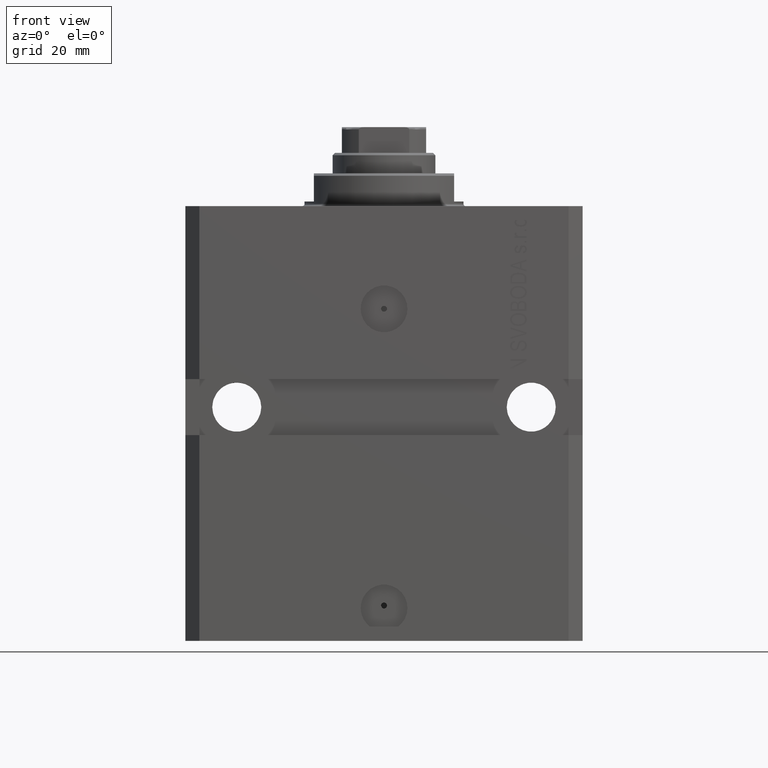
[diagram: clean part render]
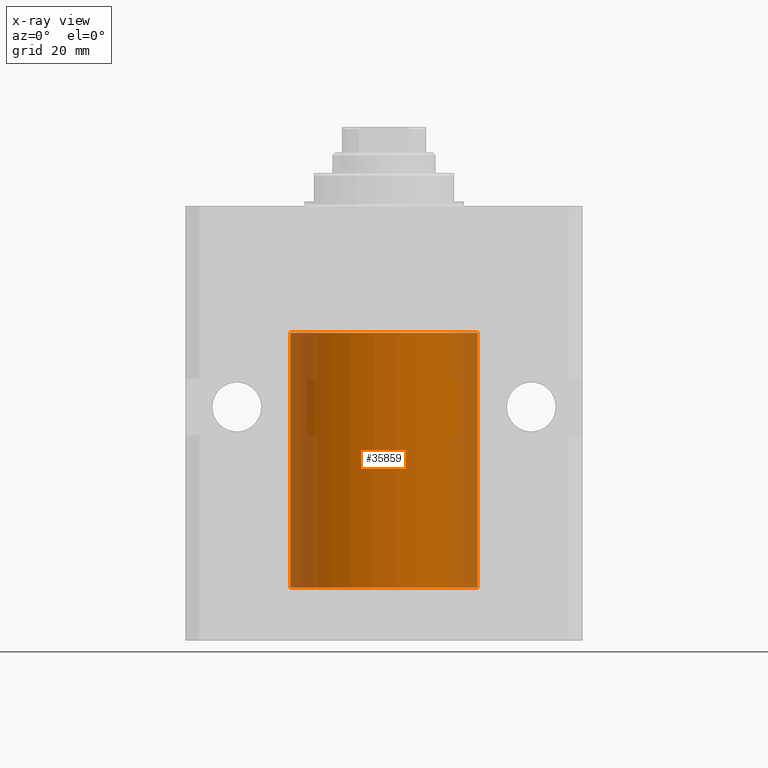
[diagram: x-ray — body ghosted, one internal face saturated and labeled with its STEP entity id]
A machine part, front view, then the same camera in x-ray: the body is ghosted and one INTERNAL B-rep face — a face not visible from any outside direction — is saturated and labeled: STEP entity #35859.
In plain terms, the highlighted cylindrical surface (partial cylindrical patch) has radius 20 mm, axis along (0, 0, 1).
Its self-contained STEP definition (entity closure, byte-faithful):
#135 = EDGE_CURVE ( 'NONE', #24305, #828, #24564, .T. ) ;
#230 = ORIENTED_EDGE ( 'NONE', *, *, #8364, .F. ) ;
#236 = DIRECTION ( 'NONE',  ( 1.000000000000000000, 0.000000000000000000, 0.000000000000000000 ) ) ;
#828 = VERTEX_POINT ( 'NONE', #15972 ) ;
#1352 = CARTESIAN_POINT ( 'NONE',  ( 19.99023198964933812, -0.6250000000000827116, -79.00000000000000000 ) ) ;
#1637 = VERTEX_POINT ( 'NONE', #27080 ) ;
#4079 = CYLINDRICAL_SURFACE ( 'NONE', #16557, 20.00000000000000000 ) ;
#5069 = CARTESIAN_POINT ( 'NONE',  ( -20.00000000000000000, 2.449293598294706513E-15, -27.10000000000000142 ) ) ;
#5662 = CARTESIAN_POINT ( 'NONE',  ( 20.00000000000000000, -4.058908006348821872E-15, -79.62500000000000000 ) ) ;
#6631 = LINE ( 'NONE', #43461, #28544 ) ;
#6952 = DIRECTION ( 'NONE',  ( 0.000000000000000000, 0.000000000000000000, 1.000000000000000000 ) ) ;
#7397 = B_SPLINE_CURVE_WITH_KNOTS ( 'NONE', 3,
 ( #26038, #36882, #18802, #26513, #41672, #7953 ),
 .UNSPECIFIED., .F., .F.,
 ( 4, 2, 4 ),
 ( 0.001954154509844075859, 0.002442840306376440652, 0.002931526102908805446 ),
 .UNSPECIFIED. ) ;
#7953 = CARTESIAN_POINT ( 'NONE',  ( 19.99023198964933812, -0.6250000000000827116, -79.00000000000000000 ) ) ;
#8364 = EDGE_CURVE ( 'NONE', #40301, #828, #6631, .T. ) ;
#8719 = DIRECTION ( 'NONE',  ( -0.000000000000000000, -0.000000000000000000, 1.000000000000000000 ) ) ;
#9108 = VERTEX_POINT ( 'NONE', #33675 ) ;
#10846 = CARTESIAN_POINT ( 'NONE',  ( 19.99023198964933812, -0.6250000000000827116, -79.00000000000000000 ) ) ;
#11799 = FACE_OUTER_BOUND ( 'NONE', #13258, .T. ) ;
#12275 = CARTESIAN_POINT ( 'NONE',  ( 0.000000000000000000, 0.000000000000000000, -81.60000000000000853 ) ) ;
#12760 = DIRECTION ( 'NONE',  ( 1.000000000000000000, 0.000000000000000000, 0.000000000000000000 ) ) ;
#13258 = EDGE_LOOP ( 'NONE', ( #42180, #25064, #16062, #230, #43840, #18615, #18397 ) ) ;
#14463 = EDGE_CURVE ( 'NONE', #30518, #1637, #31613, .T. ) ;
#14938 = DIRECTION ( 'NONE',  ( -0.000000000000000000, -0.000000000000000000, 1.000000000000000000 ) ) ;
#15135 = CARTESIAN_POINT ( 'NONE',  ( 0.000000000000000000, 0.000000000000000000, -27.10000000000000142 ) ) ;
#15972 = CARTESIAN_POINT ( 'NONE',  ( 20.00000000000000000, 0.000000000000000000, -27.10000000000000142 ) ) ;
#16062 = ORIENTED_EDGE ( 'NONE', *, *, #135, .T. ) ;
#16557 = AXIS2_PLACEMENT_3D ( 'NONE', #29405, #14938, #236 ) ;
#16764 = CARTESIAN_POINT ( 'NONE',  ( 20.00000000000000000, 0.000000000000000000, -81.60000000000000853 ) ) ;
#16852 = DIRECTION ( 'NONE',  ( 0.000000000000000000, 0.000000000000000000, 1.000000000000000000 ) ) ;
#18397 = ORIENTED_EDGE ( 'NONE', *, *, #14463, .F. ) ;
#18615 = ORIENTED_EDGE ( 'NONE', *, *, #44817, .T. ) ;
#18802 = CARTESIAN_POINT ( 'NONE',  ( 19.99766790699043995, -0.3264769477312362556, -78.44266063830006885 ) ) ;
#21568 = B_SPLINE_CURVE_WITH_KNOTS ( 'NONE', 3,
 ( #1352, #23535, #41569, #42515, #38442, #5662 ),
 .UNSPECIFIED., .F., .F.,
 ( 4, 2, 4 ),
 ( 0.002931526102908805446, 0.003419696219975630440, 0.003907866337042455000 ),
 .UNSPECIFIED. ) ;
#23535 = CARTESIAN_POINT ( 'NONE',  ( 19.99023198964934167, -0.6250000000000828226, -79.16479419982725574 ) ) ;
#24305 = VERTEX_POINT ( 'NONE', #5069 ) ;
#24386 = CARTESIAN_POINT ( 'NONE',  ( 20.00000000000000000, 0.000000000000000000, -81.60000000000000853 ) ) ;
#24564 = CIRCLE ( 'NONE', #28414, 20.00000000000000000 ) ;
#25064 = ORIENTED_EDGE ( 'NONE', *, *, #27871, .T. ) ;
#26038 = CARTESIAN_POINT ( 'NONE',  ( 20.00000000000010303, 3.555666352936568165E-13, -78.37499999999667466 ) ) ;
#26513 = CARTESIAN_POINT ( 'NONE',  ( 19.99257096259849931, -0.5571491910957669935, -78.67319862246098694 ) ) ;
#26715 = VECTOR ( 'NONE', #8719, 1000.000000000000000 ) ;
#27080 = CARTESIAN_POINT ( 'NONE',  ( 20.00000000000000000, -4.058908006348821872E-15, -79.62500000000000000 ) ) ;
#27871 = EDGE_CURVE ( 'NONE', #9108, #24305, #32187, .T. ) ;
#28414 = AXIS2_PLACEMENT_3D ( 'NONE', #15135, #6952, #29845 ) ;
#28544 = VECTOR ( 'NONE', #42526, 1000.000000000000000 ) ;
#29405 = CARTESIAN_POINT ( 'NONE',  ( 0.000000000000000000, 0.000000000000000000, -81.60000000000000853 ) ) ;
#29845 = DIRECTION ( 'NONE',  ( 1.000000000000000000, 0.000000000000000000, 0.000000000000000000 ) ) ;
#30518 = VERTEX_POINT ( 'NONE', #16764 ) ;
#31613 = LINE ( 'NONE', #24386, #26715 ) ;
#32187 = LINE ( 'NONE', #40334, #45509 ) ;
#33675 = CARTESIAN_POINT ( 'NONE',  ( -20.00000000000000000, 2.449293598294706513E-15, -81.60000000000000853 ) ) ;
#34970 = VERTEX_POINT ( 'NONE', #10846 ) ;
#35859 = ADVANCED_FACE ( 'NONE', ( #11799 ), #4079, .F. ) ;
#36863 = EDGE_CURVE ( 'NONE', #9108, #30518, #40440, .T. ) ;
#36882 = CARTESIAN_POINT ( 'NONE',  ( 20.00000000000000000, -0.1632180151482451602, -78.37499999999984368 ) ) ;
#38142 = AXIS2_PLACEMENT_3D ( 'NONE', #12275, #16852, #12760 ) ;
#38442 = CARTESIAN_POINT ( 'NONE',  ( 20.00000000000000000, -0.1650670266421430665, -79.62500000000002842 ) ) ;
#40301 = VERTEX_POINT ( 'NONE', #43191 ) ;
#40334 = CARTESIAN_POINT ( 'NONE',  ( -20.00000000000000000, 2.449293598294706513E-15, -81.60000000000000853 ) ) ;
#40440 = CIRCLE ( 'NONE', #38142, 20.00000000000000000 ) ;
#41547 = EDGE_CURVE ( 'NONE', #40301, #34970, #7397, .T. ) ;
#41569 = CARTESIAN_POINT ( 'NONE',  ( 19.99256494106949944, -0.5573539455062719306, -79.32646132359609226 ) ) ;
#41672 = CARTESIAN_POINT ( 'NONE',  ( 19.99023198964933812, -0.6250000000000828226, -78.83503171949485022 ) ) ;
#42180 = ORIENTED_EDGE ( 'NONE', *, *, #36863, .F. ) ;
#42515 = CARTESIAN_POINT ( 'NONE',  ( 19.99766246719553209, -0.3267907458473873761, -79.55716086079694094 ) ) ;
#42526 = DIRECTION ( 'NONE',  ( -0.000000000000000000, -0.000000000000000000, 1.000000000000000000 ) ) ;
#42984 = DIRECTION ( 'NONE',  ( -0.000000000000000000, -0.000000000000000000, 1.000000000000000000 ) ) ;
#43191 = CARTESIAN_POINT ( 'NONE',  ( 20.00000000000010303, 3.555666352936568165E-13, -78.37499999999667466 ) ) ;
#43461 = CARTESIAN_POINT ( 'NONE',  ( 20.00000000000000000, 0.000000000000000000, -81.60000000000000853 ) ) ;
#43840 = ORIENTED_EDGE ( 'NONE', *, *, #41547, .T. ) ;
#44817 = EDGE_CURVE ( 'NONE', #34970, #1637, #21568, .T. ) ;
#45509 = VECTOR ( 'NONE', #42984, 1000.000000000000000 ) ;